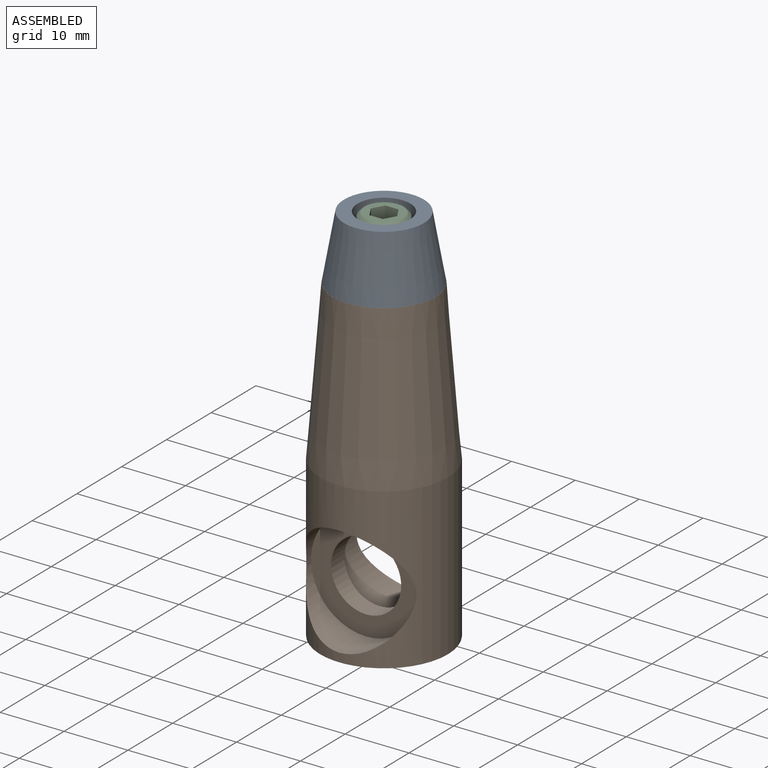
[diagram: assembled view]
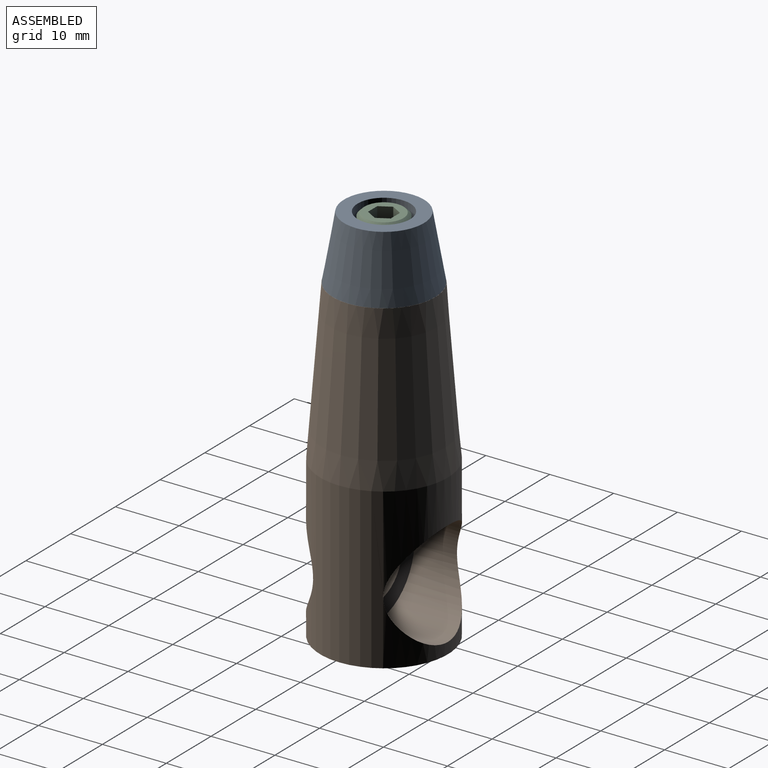
[diagram: assembled view, second angle]
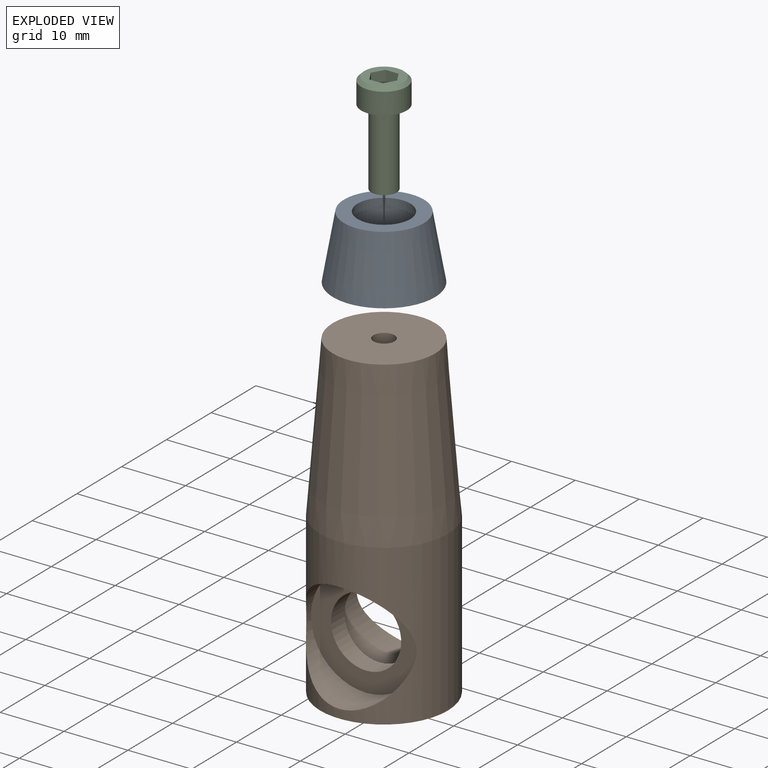
[diagram: exploded view]
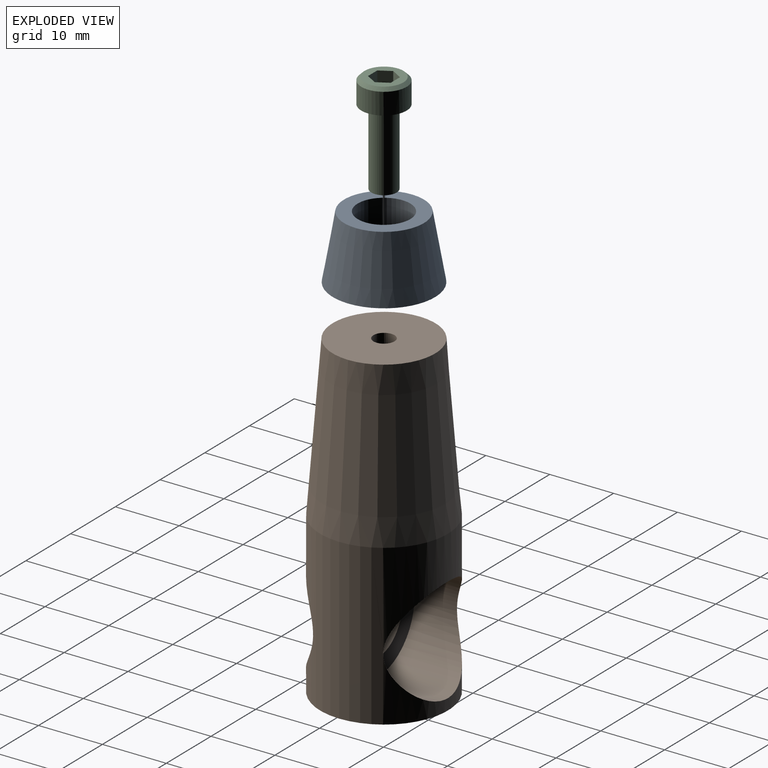
[diagram: exploded view, second angle]
ASSEMBLY  parts=3 mates=2
PART A: 6 faces, bbox 16x10x16 mm
  f0: plane 16x16mm, normal (0,1,0), area 185.2mm2, adj f2,f3
  f1: plane 12.5x12.5mm, normal (0,-1,0), area 69.3mm2, adj f2,f5
  f2: cone r=8mm half-angle=9.9deg, axis (0,1,0), area 454.5mm2, adj f0,f1
  f3: cylinder r=2.25mm len=6mm, axis (0,-1,0), area 84.8mm2, adj f0,f4
  f4: plane 8.25x8.25mm, normal (0,-1,0), area 37.6mm2, adj f3,f5
  f5: cylinder r=4.12mm len=8.25mm, axis (0,-1,0), area 103.7mm2, adj f1,f4
PART B: 11 faces, bbox 20x20x50 mm
  f0: cylinder r=10mm len=25mm, axis (0,0,-1), area 1065.1mm2, adj f2,f4,f5,f8
  f1: cylinder r=5.5mm len=11mm, axis (0,-1,0), area 103.7mm2, adj f6,f7
  f2: plane 20x20mm, normal (0,0,-1), area 314.2mm2, adj f0
  f3: plane 16.05x16.05mm, normal (0,0,1), area 193.8mm2, adj f4,f10
  f4: cone r=7mm half-angle=4.5deg, axis (0,0,-1), area 1420.2mm2, adj f0,f3
  f5: cylinder r=8.62mm len=17.25mm, axis (0,-1,0), area 202.4mm2, adj f0,f6
  f6: plane 17.25x17.25mm, normal (0,-1,0), area 138.7mm2, adj f1,f5
  f7: plane 16.5x16.5mm, normal (0,1,0), area 118.8mm2, adj f1,f8
  f8: cylinder r=8.25mm len=16.5mm, axis (0,1,0), area 465.4mm2, adj f0,f7
  f9: cone r=0mm half-angle=59deg, axis (0,0,1), area 10mm2, adj f10
  f10: cylinder r=1.65mm len=11.1mm, axis (0,0,1), area 115.1mm2, adj f3,f9
PART C: 13 faces, bbox 7.1x15.9x7.1 mm
  f0: plane 6.1x6.1mm, normal (0,-1,0), area 18.2mm2, adj f3,f4,f5,f6,f7,f8,f12
  f1: cylinder r=3.55mm len=7.1mm, axis (0,1,0), area 74.9mm2, adj f2,f12
  f2: plane 7.1x7.1mm, normal (0,1,0), area 27mm2, adj f1,f10
  f3: plane 2.5x1.78mm, normal (-0.87,0,0.5), area 5.2mm2, adj f0,f4,f8,f9
  f4: plane 2.5x1.78mm, normal (-0.87,0,-0.5), area 5.2mm2, adj f0,f3,f5,f9
  f5: plane 2.5x2.06mm, normal (0,0,-1), area 5.2mm2, adj f0,f4,f6,f9
  f6: plane 2.5x1.78mm, normal (0.87,0,-0.5), area 5.2mm2, adj f0,f5,f7,f9
  f7: plane 2.5x1.78mm, normal (0.87,0,0.5), area 5.2mm2, adj f0,f6,f8,f9
  f8: plane 2.5x2.06mm, normal (0,0,1), area 5.2mm2, adj f0,f3,f7,f9
  f9: plane 4.12x3.57mm, normal (0,-1,0), area 11mm2, adj f3,f4,f5,f6,f7,f8
  f10: cylinder r=2mm len=12mm, axis (0,-1,0), area 150.8mm2, adj f2,f11
  f11: plane 4x4mm, normal (0,1,0), area 12.6mm2, adj f10
  f12: cone r=3.05mm half-angle=45deg, axis (0,1,0), area 14.7mm2, adj f0,f1
PLACE A rot(axis=(-1,0,0),90deg) t=(-32.06,1.64,48.69)mm
PLACE B t=(-32.06,1.64,-1.31)mm
PLACE C rot(axis=(-1,0,0),90deg) t=(-32.06,1.64,54.69)mm
MATE fastened C.f1 <-> A.f2  axis (0,0,1) through (-32.06,1.64,54.69)mm
MATE fastened A.f2 <-> B.f4  axis (0,0,-1) through (-32.06,1.64,48.69)mm
